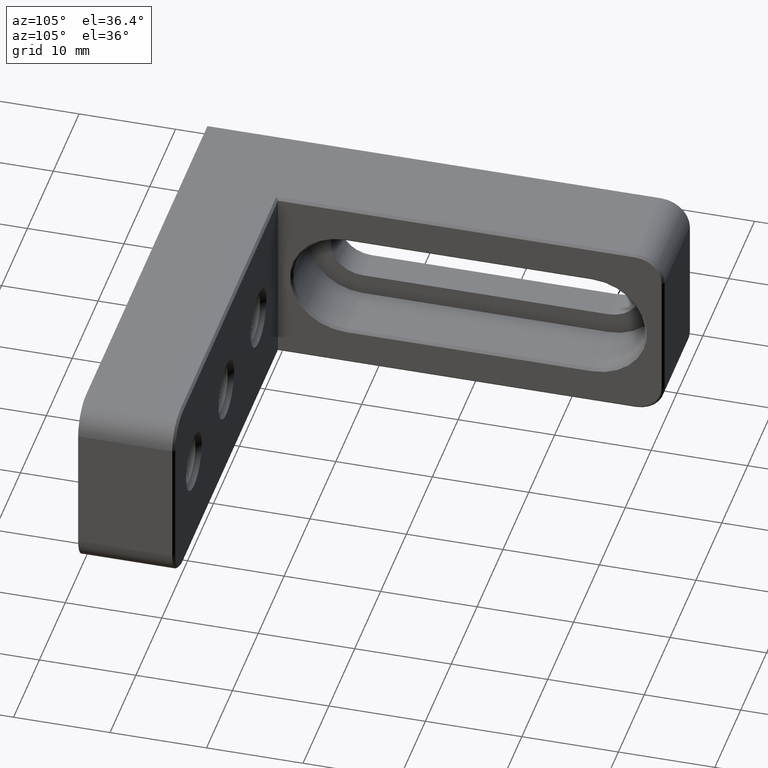
[diagram: clean part render]
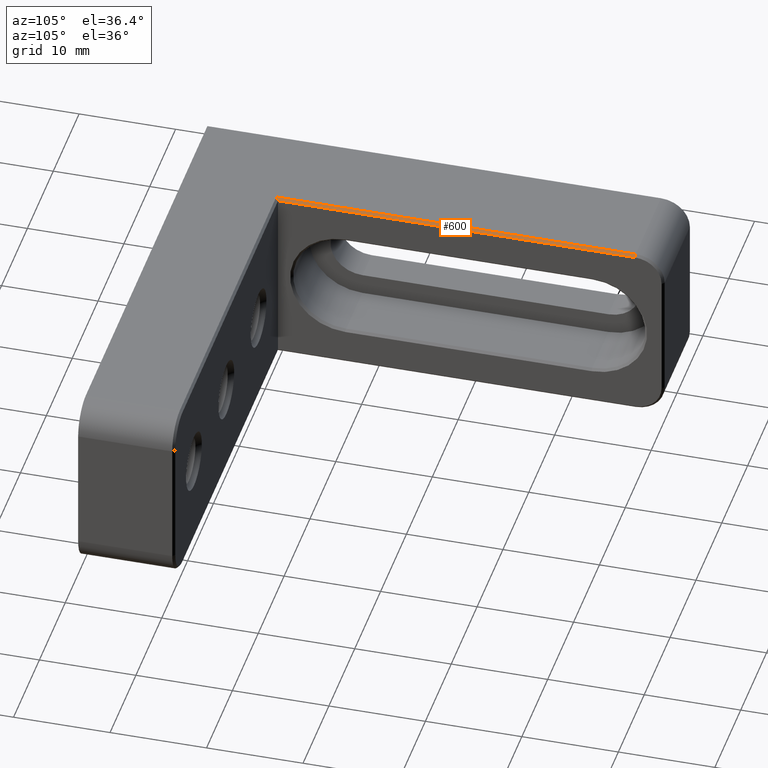
[diagram: same view with one face highlighted and labeled with its STEP entity id]
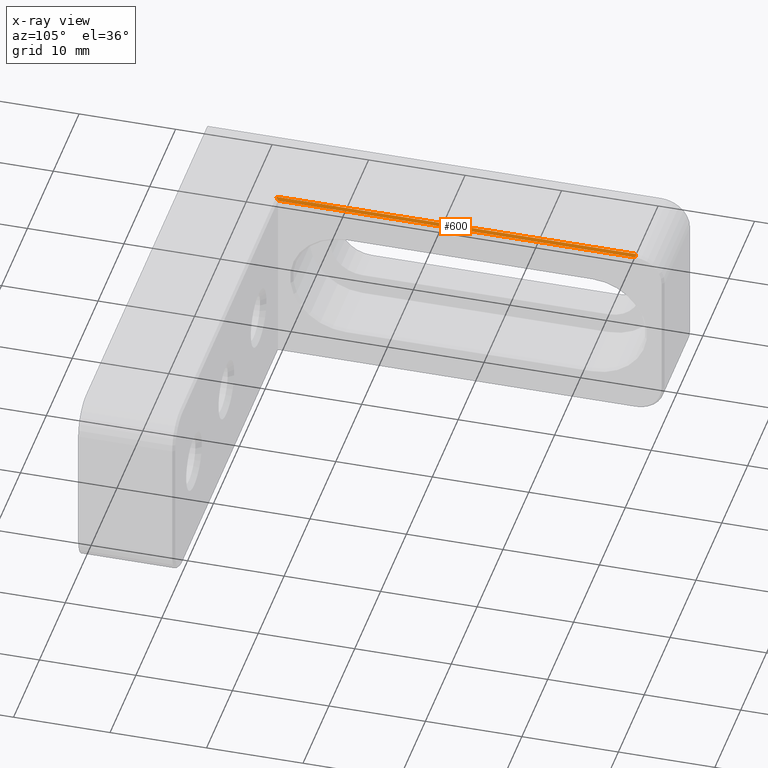
[diagram: x-ray of the same camera — body ghosted, the highlighted face saturated]
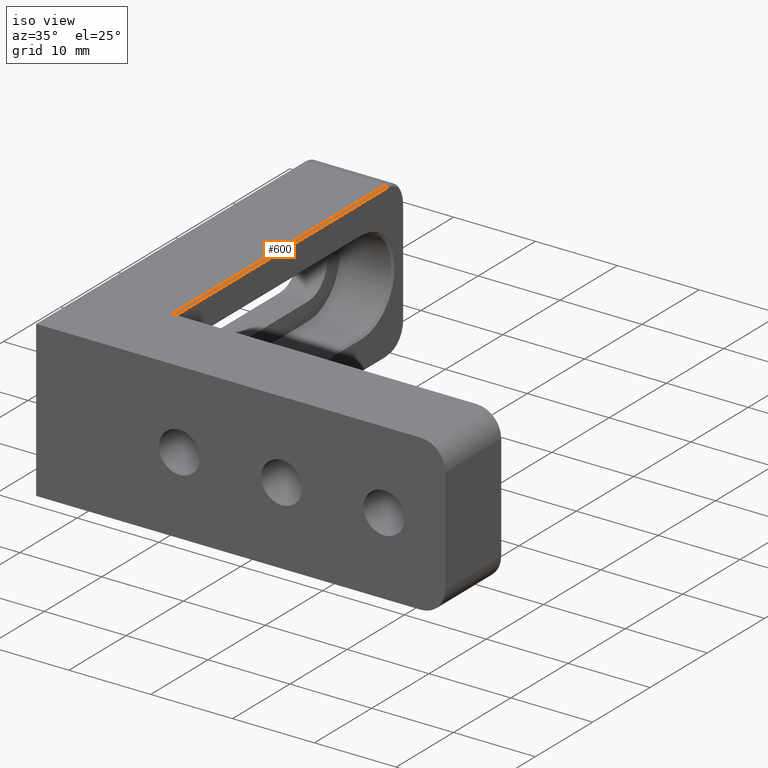
[diagram: same view with one face highlighted and labeled with its STEP entity id]
A machine part, auxiliary view. The second image highlights one B-rep face of the part: STEP entity #600.
The next image is the same camera in x-ray: the body ghosted, the highlighted face saturated — about 0% of this face is hidden behind the body in this view.
A second angle (iso view) of the same face is appended — the face is thin or edge-on in the first view.
In plain terms, the highlighted planar face has unit normal (-0.7071, -0, -0.7071).
Its self-contained STEP definition (entity closure, byte-faithful):
#16 = CARTESIAN_POINT ( 'NONE',  ( -9.999999999999998224, 15.00000000000000000, 4.250000000000005329 ) ) ;
#90 = EDGE_CURVE ( 'NONE', #461, #666, #549, .T. ) ;
#102 = ORIENTED_EDGE ( 'NONE', *, *, #712, .T. ) ;
#117 = VERTEX_POINT ( 'NONE', #245 ) ;
#124 = VECTOR ( 'NONE', #805, 1000.000000000000000 ) ;
#126 = DIRECTION ( 'NONE',  ( -0.5773502691896257311, -0.5773502691896257311, 0.5773502691896257311 ) ) ;
#149 = CARTESIAN_POINT ( 'NONE',  ( -14.99999999999999289, 10.00000000000000000, 9.249999999999998224 ) ) ;
#159 = DIRECTION ( 'NONE',  ( 0.000000000000000000, -1.000000000000000000, 0.000000000000000000 ) ) ;
#187 = CARTESIAN_POINT ( 'NONE',  ( -14.99999999999999289, 47.00000000000000000, 9.249999999999998224 ) ) ;
#218 = EDGE_CURVE ( 'NONE', #666, #941, #974, .T. ) ;
#240 = ORIENTED_EDGE ( 'NONE', *, *, #503, .F. ) ;
#245 = CARTESIAN_POINT ( 'NONE',  ( -15.25000000000000000, 47.00000000000000000, 9.500000000000005329 ) ) ;
#303 = VECTOR ( 'NONE', #766, 1000.000000000000000 ) ;
#325 = VECTOR ( 'NONE', #823, 1000.000000000000114 ) ;
#461 = VERTEX_POINT ( 'NONE', #187 ) ;
#503 = EDGE_CURVE ( 'NONE', #941, #117, #547, .T. ) ;
#547 = LINE ( 'NONE', #1030, #303 ) ;
#549 = LINE ( 'NONE', #1111, #124 ) ;
#600 = ADVANCED_FACE ( 'NONE', ( #890 ), #797, .F. ) ;
#621 = DIRECTION ( 'NONE',  ( -0.7071067811865475727, -0.000000000000000000, -0.7071067811865475727 ) ) ;
#666 = VERTEX_POINT ( 'NONE', #149 ) ;
#712 = EDGE_CURVE ( 'NONE', #461, #117, #1066, .T. ) ;
#722 = CARTESIAN_POINT ( 'NONE',  ( -14.99999999999999289, 50.00000000000000000, 9.249999999999998224 ) ) ;
#739 = ORIENTED_EDGE ( 'NONE', *, *, #90, .F. ) ;
#766 = DIRECTION ( 'NONE',  ( 0.000000000000000000, 1.000000000000000000, 0.000000000000000000 ) ) ;
#797 = PLANE ( 'NONE',  #987 ) ;
#805 = DIRECTION ( 'NONE',  ( 0.000000000000000000, -1.000000000000000000, 0.000000000000000000 ) ) ;
#823 = DIRECTION ( 'NONE',  ( -0.7071067811865474617, 0.000000000000000000, 0.7071067811865474617 ) ) ;
#890 = FACE_OUTER_BOUND ( 'NONE', #1032, .T. ) ;
#941 = VERTEX_POINT ( 'NONE', #950 ) ;
#950 = CARTESIAN_POINT ( 'NONE',  ( -15.25000000000000000, 9.750000000000000000, 9.500000000000005329 ) ) ;
#974 = LINE ( 'NONE', #16, #1189 ) ;
#987 = AXIS2_PLACEMENT_3D ( 'NONE', #722, #621, #159 ) ;
#1012 = ORIENTED_EDGE ( 'NONE', *, *, #218, .F. ) ;
#1030 = CARTESIAN_POINT ( 'NONE',  ( -15.25000000000000000, 10.00000000000000000, 9.500000000000005329 ) ) ;
#1032 = EDGE_LOOP ( 'NONE', ( #102, #240, #1012, #739 ) ) ;
#1066 = LINE ( 'NONE', #1101, #325 ) ;
#1101 = CARTESIAN_POINT ( 'NONE',  ( -14.99999999999999289, 47.00000000000000000, 9.249999999999998224 ) ) ;
#1111 = CARTESIAN_POINT ( 'NONE',  ( -14.99999999999999289, 50.00000000000000000, 9.249999999999998224 ) ) ;
#1189 = VECTOR ( 'NONE', #126, 1000.000000000000114 ) ;